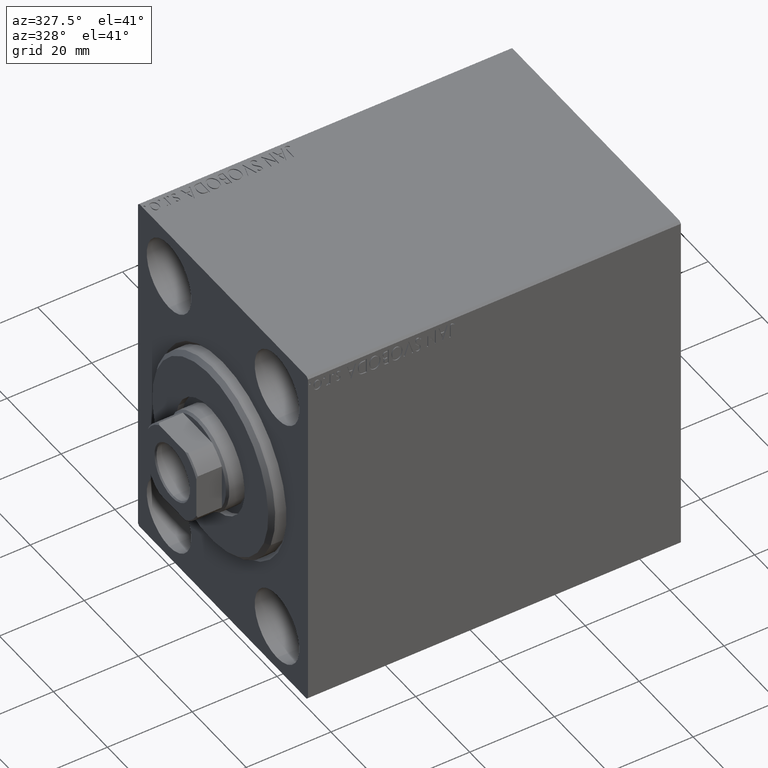
[diagram: clean part render]
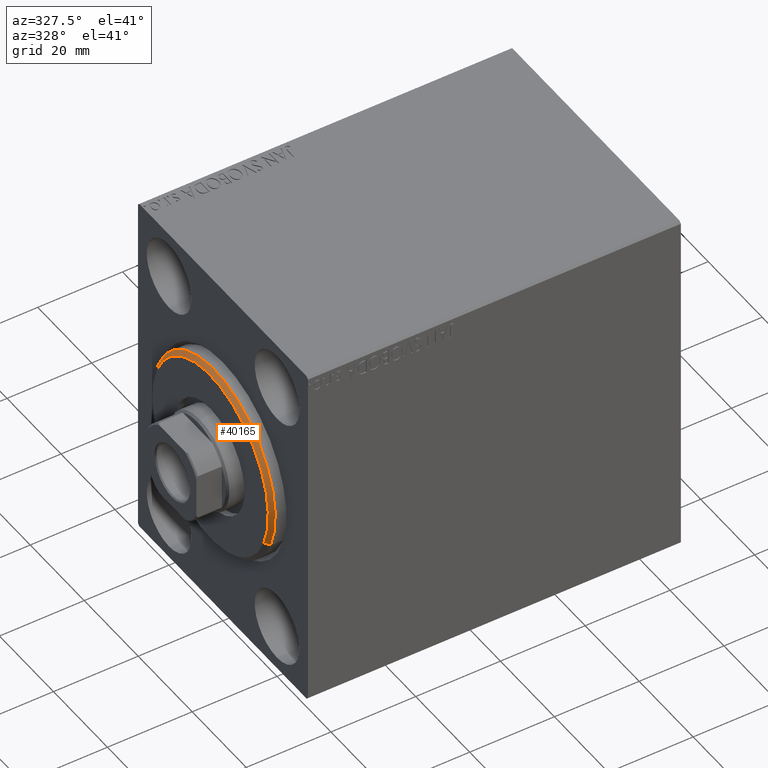
[diagram: same view with one face highlighted and labeled with its STEP entity id]
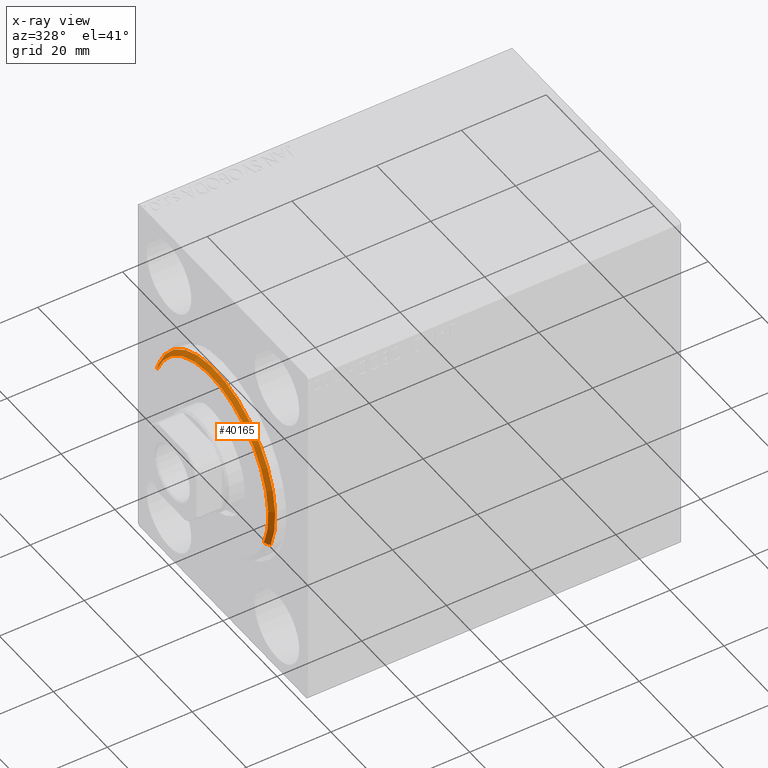
[diagram: x-ray of the same camera — body ghosted, the highlighted face saturated]
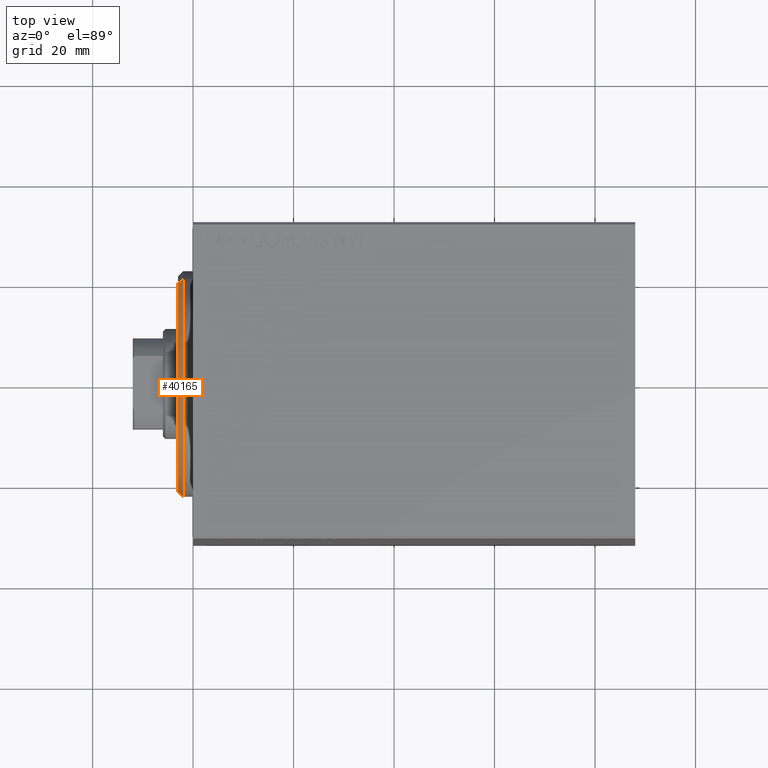
[diagram: same view with one face highlighted and labeled with its STEP entity id]
A machine part, auxiliary view. The second image highlights one B-rep face of the part: STEP entity #40165.
The next image is the same camera in x-ray: the body ghosted, the highlighted face saturated — about 0% of this face is hidden behind the body in this view.
A second angle (top view) of the same face is appended — the face is thin or edge-on in the first view.
In plain terms, the highlighted conical surface has half-angle 45 deg.
Its self-contained STEP definition (entity closure, byte-faithful):
#956 = ORIENTED_EDGE ( 'NONE', *, *, #29155, .F. ) ;
#1198 = DIRECTION ( 'NONE',  ( -0.7071067811865487940, 8.659560562354919300E-17, -0.7071067811865463515 ) ) ;
#2764 = CARTESIAN_POINT ( 'NONE',  ( 1.999999999999999112, 0.000000000000000000, 22.50000000000000355 ) ) ;
#3135 = ORIENTED_EDGE ( 'NONE', *, *, #19569, .T. ) ;
#3547 = FACE_OUTER_BOUND ( 'NONE', #14621, .T. ) ;
#4496 = CARTESIAN_POINT ( 'NONE',  ( 3.000000000000000000, 2.632990618166810024E-15, -21.50000000000000355 ) ) ;
#6765 = DIRECTION ( 'NONE',  ( 0.000000000000000000, 0.000000000000000000, -1.000000000000000000 ) ) ;
#7719 = CARTESIAN_POINT ( 'NONE',  ( 3.000000000000000000, 0.000000000000000000, 0.000000000000000000 ) ) ;
#9058 = VERTEX_POINT ( 'NONE', #2764 ) ;
#9199 = ORIENTED_EDGE ( 'NONE', *, *, #12278, .F. ) ;
#9421 = AXIS2_PLACEMENT_3D ( 'NONE', #33749, #30628, #37288 ) ;
#10292 = CONICAL_SURFACE ( 'NONE', #34297, 21.50000000000000355, 0.7853981633974466137 ) ;
#11518 = CIRCLE ( 'NONE', #9421, 21.50000000000000355 ) ;
#12278 = EDGE_CURVE ( 'NONE', #31115, #20862, #31042, .T. ) ;
#13388 = CARTESIAN_POINT ( 'NONE',  ( 1.999999999999999112, 0.000000000000000000, 0.000000000000000000 ) ) ;
#13681 = LINE ( 'NONE', #41998, #35997 ) ;
#14621 = EDGE_LOOP ( 'NONE', ( #9199, #956, #3135, #39760 ) ) ;
#17095 = CIRCLE ( 'NONE', #42532, 22.50000000000000355 ) ;
#19569 = EDGE_CURVE ( 'NONE', #34410, #9058, #13681, .T. ) ;
#20862 = VERTEX_POINT ( 'NONE', #33695 ) ;
#22879 = CARTESIAN_POINT ( 'NONE',  ( 3.000000000000000000, 2.694222958124177598E-15, -21.50000000000000355 ) ) ;
#25110 = EDGE_CURVE ( 'NONE', #20862, #9058, #17095, .T. ) ;
#26615 = VECTOR ( 'NONE', #1198, 1000.000000000000000 ) ;
#29155 = EDGE_CURVE ( 'NONE', #34410, #31115, #11518, .T. ) ;
#30628 = DIRECTION ( 'NONE',  ( 1.000000000000000000, -0.000000000000000000, 0.000000000000000000 ) ) ;
#31042 = LINE ( 'NONE', #4496, #26615 ) ;
#31115 = VERTEX_POINT ( 'NONE', #22879 ) ;
#33695 = CARTESIAN_POINT ( 'NONE',  ( 1.999999999999999112, 2.755455298081545172E-15, -22.50000000000000355 ) ) ;
#33749 = CARTESIAN_POINT ( 'NONE',  ( 3.000000000000000000, 0.000000000000000000, 0.000000000000000000 ) ) ;
#33962 = DIRECTION ( 'NONE',  ( -1.000000000000000000, 0.000000000000000000, 0.000000000000000000 ) ) ;
#34275 = DIRECTION ( 'NONE',  ( 0.000000000000000000, 0.000000000000000000, 1.000000000000000000 ) ) ;
#34297 = AXIS2_PLACEMENT_3D ( 'NONE', #7719, #37819, #34275 ) ;
#34410 = VERTEX_POINT ( 'NONE', #38862 ) ;
#34486 = DIRECTION ( 'NONE',  ( -0.7071067811865487940, 0.000000000000000000, 0.7071067811865463515 ) ) ;
#35997 = VECTOR ( 'NONE', #34486, 1000.000000000000000 ) ;
#37288 = DIRECTION ( 'NONE',  ( 0.000000000000000000, 0.000000000000000000, -1.000000000000000000 ) ) ;
#37819 = DIRECTION ( 'NONE',  ( -1.000000000000000000, 0.000000000000000000, 0.000000000000000000 ) ) ;
#38862 = CARTESIAN_POINT ( 'NONE',  ( 3.000000000000000000, 0.000000000000000000, 21.50000000000000355 ) ) ;
#39760 = ORIENTED_EDGE ( 'NONE', *, *, #25110, .F. ) ;
#40165 = ADVANCED_FACE ( 'NONE', ( #3547 ), #10292, .T. ) ;
#41998 = CARTESIAN_POINT ( 'NONE',  ( 3.000000000000000000, 0.000000000000000000, 21.50000000000000355 ) ) ;
#42532 = AXIS2_PLACEMENT_3D ( 'NONE', #13388, #33962, #6765 ) ;